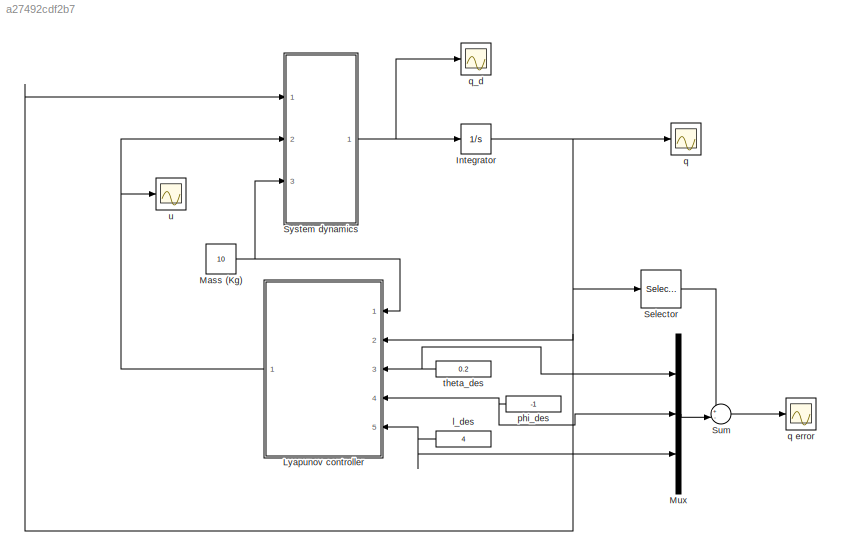
MODEL slx_a27492cdf2b7
KIND model
CONFIG AbsTol = auto
CONFIG EnableMultiTasking = off
CONFIG FixedStep = auto
CONFIG MaxStep = auto
CONFIG MinStep = auto
CONFIG RelTol = 1e-3
CONFIG SampleTimeConstraint = Unconstrained
CONFIG Solver = VariableStepAuto
CONFIG SolverName = VariableStepAuto
CONFIG StartTime = 0.0
CONFIG StopTime = 10.0
BLOCK [Integrator] Integrator
  InitialCondition = rand(6,1)
  Ports = [1, 1]
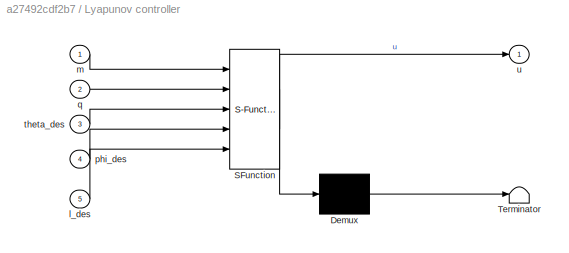
BLOCK [SubSystem] Lyapunov controller
  ErrorFcn = Stateflow.Translate.translate
  PermitHierarchicalResolution = ExplicitOnly
  Ports = [5, 1]
  RequestExecContextInheritance = off
  SFBlockType = MATLAB Function
  TreatAsAtomicUnit = on
BLOCK [Demux] Lyapunov controller/ Demux 
  Outputs = 1
  Ports = [1, 1]
BLOCK [S-Function] Lyapunov controller/ SFunction 
  EnableBusSupport = on
  FunctionName = sf_sfun
  PortCounts = [5 2]
  Ports = [5, 2]
  SFcnIsStateOwnerBlock = off
  SFunctionDeploymentMode = off
  Tag = Stateflow S-Function 1
BLOCK [Terminator] Lyapunov controller/ Terminator 
BLOCK [Inport] Lyapunov controller/l_des
  Port = 5
BLOCK [Inport] Lyapunov controller/m
BLOCK [Inport] Lyapunov controller/phi_des
  Port = 4
BLOCK [Inport] Lyapunov controller/q
  Port = 2
BLOCK [Inport] Lyapunov controller/theta_des
  Port = 3
BLOCK [Outport] Lyapunov controller/u
BLOCK [Constant] Mass (Kg)
  Value = 10
BLOCK [Mux] Mux
  DisplayOption = bar
  Inputs = 3
  Ports = [3, 1]
BLOCK [Selector] Selector
  IndexOptions = Index vector (dialog)
  Indices = [1 2 3]
  InputPortWidth = 6
  OutputSizes = 1
  Ports = [1, 1]
BLOCK [Sum] Sum
  Inputs = +-|
  Ports = [2, 1]
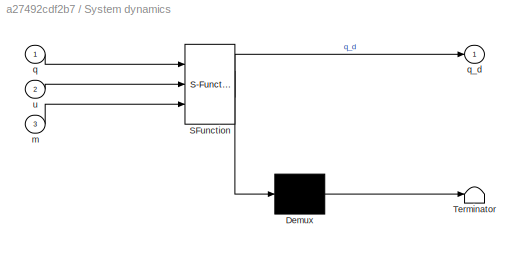
BLOCK [SubSystem] System dynamics
  ErrorFcn = Stateflow.Translate.translate
  PermitHierarchicalResolution = ExplicitOnly
  Ports = [3, 1]
  RequestExecContextInheritance = off
  SFBlockType = MATLAB Function
  TreatAsAtomicUnit = on
BLOCK [Demux] System dynamics/ Demux 
  Outputs = 1
  Ports = [1, 1]
BLOCK [S-Function] System dynamics/ SFunction 
  EnableBusSupport = on
  FunctionName = sf_sfun
  PortCounts = [3 2]
  Ports = [3, 2]
  SFcnIsStateOwnerBlock = off
  SFunctionDeploymentMode = off
  Tag = Stateflow S-Function 2
BLOCK [Terminator] System dynamics/ Terminator 
BLOCK [Inport] System dynamics/m
  Port = 3
BLOCK [Inport] System dynamics/q
BLOCK [Outport] System dynamics/q_d
BLOCK [Inport] System dynamics/u
  Port = 2
BLOCK [Constant] l_des
  Value = 4
BLOCK [Constant] phi_des
  Value = -1
BLOCK [Scope] q
  Floating = off
  NumInputPorts = 1
  Ports = [1]
  ScopeSpecificationString = Simulink.scopes.TimeScopeBlockCfg('CurrentConfiguration', extmgr.ConfigurationSet(extmgr.Configuration('Core','General UI',true),extmgr.Configuration('Core','Source UI',true),extmgr.Configuration('Sources','WiredSimulink',true),extmgr.Configuration('Visuals','Time Domain',true,'SerializedDisplays',{struct('MinYLimReal','-1.62491','MaxYLimReal','4.62477','YLabelReal','','MinYLimMag','0.00000','MaxY...<+1619ch>
BLOCK [Scope] q error
  Floating = off
  NumInputPorts = 1
  Ports = [1]
  ScopeSpecificationString = Simulink.scopes.TimeScopeBlockCfg('CurrentConfiguration', extmgr.ConfigurationSet(extmgr.Configuration('Core','General UI',true),extmgr.Configuration('Core','Source UI',true),extmgr.Configuration('Sources','WiredSimulink',true,'DataLoggingVariableName','ScopeData3'),extmgr.Configuration('Visuals','Time Domain',true,'SerializedDisplays',{struct('MinYLimReal','-4.57597','MaxYLimReal','1.72323','YLab...<+1661ch>
BLOCK [Scope] q_d
  Floating = off
  NumInputPorts = 1
  Ports = [1]
  ScopeSpecificationString = Simulink.scopes.TimeScopeBlockCfg('CurrentConfiguration', extmgr.ConfigurationSet(extmgr.Configuration('Core','General UI',true),extmgr.Configuration('Core','Source UI',true),extmgr.Configuration('Sources','WiredSimulink',true,'DataLoggingVariableName','ScopeData2'),extmgr.Configuration('Visuals','Time Domain',true,'SerializedDisplays',{struct('MinYLimReal','-25.39385','MaxYLimReal','35.25085','YL...<+1665ch>
BLOCK [Constant] theta_des
  Value = 0.2
BLOCK [Scope] u
  Floating = off
  NumInputPorts = 1
  Ports = [1]
  ScopeSpecificationString = Simulink.scopes.TimeScopeBlockCfg('CurrentConfiguration', extmgr.ConfigurationSet(extmgr.Configuration('Core','General UI',true),extmgr.Configuration('Core','Source UI',true),extmgr.Configuration('Sources','WiredSimulink',true,'DataLoggingVariableName','ScopeData1'),extmgr.Configuration('Visuals','Time Domain',true,'SerializedDisplays',{struct('MinYLimReal','-153.63475','MaxYLimReal','249.28806','...<+1632ch>
NET Integrator:1 -> Lyapunov controller:2, Selector:1, System dynamics:1, q:1
NET Lyapunov controller:1 -> System dynamics:2, u:1
NET Mass (Kg):1 -> Lyapunov controller:1, System dynamics:3
LINE Mux:1 -> Sum:2
LINE Selector:1 -> Sum:1
LINE Sum:1 -> q error:1
NET System dynamics:1 -> Integrator:1, q_d:1
NET l_des:1 -> Lyapunov controller:5, Mux:3
NET phi_des:1 -> Lyapunov controller:4, Mux:2
NET theta_des:1 -> Lyapunov controller:3, Mux:1
note: NET lines group one-source signal fan-out (src -> all destinations, sorted); 1:1 wires keep LINE
CHART Lyapunov controller states=1 transitions=1
  STATE_LABEL 'eML_blk_kernel()'
  STATE_LABEL 'SCRIPT:\nfunction u = fcn(m, q, theta_des, phi_des, l_des)\n\ng = 9.8;   % m/s^2\n\n% Gains\nk_theta = 10;\nk_phi = 10;\nk_l = 10;\nk_omega = 1;\nk_psi = 1;\nk_r = 1;\n\n% State space variables\ntheta = q(1);\nphi = q(2);\nl = q(3);\nomega = q(4);\npsi = q(5);\nr = q(6);\n\n% Desired velocities\nomega_des = -k_theta*(theta - theta_des);\npsi_des = -k_phi*(phi - phi_des);\nr_des = -k_l*(l - l_des);\n\n% Value of the nonline...<+399ch>'
CHART System dynamics states=1 transitions=1
  STATE_LABEL 'eML_blk_kernel()'
  STATE_LABEL 'SCRIPT:\nfunction q_d = fcn(q, u, m)\n\ng = 9.8;   % m/s^2\n\n% Inputs\nFn = u(1);\nFt = u(2);\nFr = u(3);\n\n% State space variables\ntheta = q(1);\nphi = q(2);\nl = q(3);\nomega = q(4);\npsi = q(5);\nr = q(6);\n\n% Dynamics\ntheta_p = omega;\nphi_p = psi;\nl_p = r;\nomega_p = - 2*omega*r/l + psi^2*sin(theta)*cos(theta) - g/l*sin(theta) + Fn/(m*l);\npsi_p = - 2*psi*r/l - 2*psi*omega*cos(theta)/sin(theta) + Ft/(m*l*sin(...<+134ch>'
CHART  states=0 transitions=0
CHART  states=0 transitions=0
